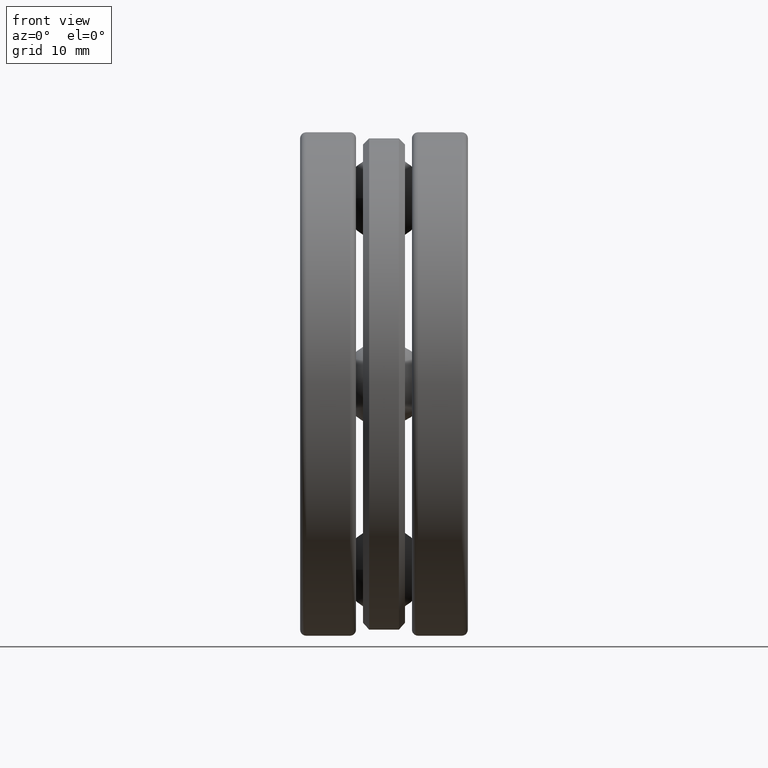
[diagram: clean part render]
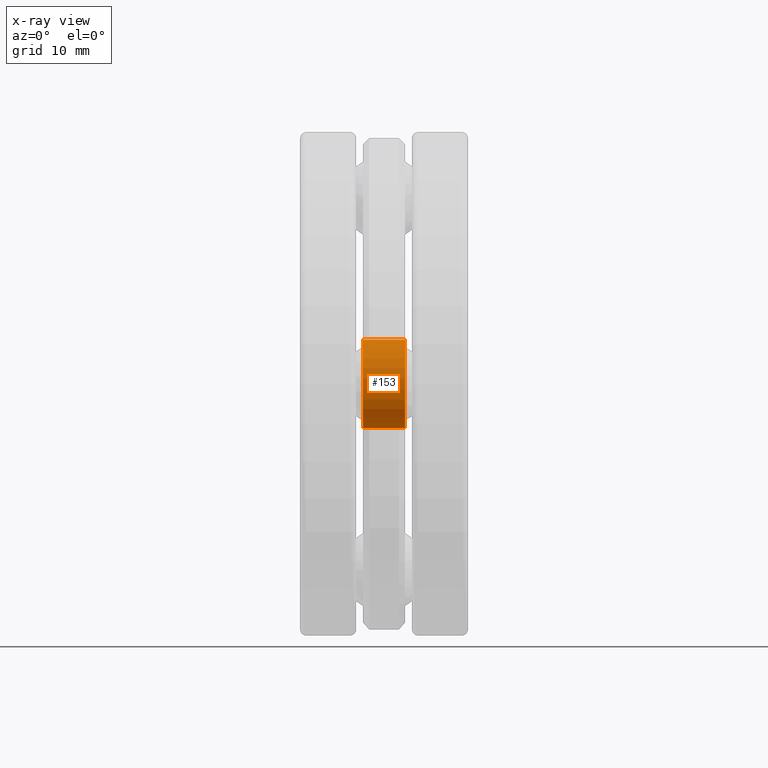
[diagram: x-ray — body ghosted, one internal face saturated and labeled with its STEP entity id]
A machine part, front view, then the same camera in x-ray: the body is ghosted and one INTERNAL B-rep face — a face not visible from any outside direction — is saturated and labeled: STEP entity #153.
In plain terms, the highlighted cylindrical surface (bore or boss wall) has radius 3.6957 mm, axis along (1, 0, 0).
Its self-contained STEP definition (entity closure, byte-faithful):
#62 = FACE_OUTER_BOUND ( 'NONE', #436, .T. ) ;
#69 = CYLINDRICAL_SURFACE ( 'NONE', #503, 0.1455000000000000500 ) ;
#70 = AXIS2_PLACEMENT_3D ( 'NONE', #284, #532, #727 ) ;
#105 = FACE_OUTER_BOUND ( 'NONE', #634, .T. ) ;
#120 = CARTESIAN_POINT ( 'NONE',  ( -0.2755393700787402400, -0.6102499999999999600, 0.0000000000000000000 ) ) ;
#153 = ADVANCED_FACE ( 'NONE', ( #62, #105 ), #69, .F. ) ;
#158 = EDGE_CURVE ( 'NONE', #671, #671, #752, .T. ) ;
#186 = CARTESIAN_POINT ( 'NONE',  ( 0.06887500000000003300, -0.6102499999999999600, 0.1455000000000000500 ) ) ;
#213 = CARTESIAN_POINT ( 'NONE',  ( -0.06887499999999996400, -0.6102499999999999600, 0.1455000000000000500 ) ) ;
#284 = CARTESIAN_POINT ( 'NONE',  ( 0.06887500000000003300, -0.6102499999999999600, 0.0000000000000000000 ) ) ;
#309 = DIRECTION ( 'NONE',  ( 0.0000000000000000000, 0.0000000000000000000, 1.000000000000000000 ) ) ;
#328 = VERTEX_POINT ( 'NONE', #213 ) ;
#367 = DIRECTION ( 'NONE',  ( -1.000000000000000000, -0.0000000000000000000, -0.0000000000000000000 ) ) ;
#371 = CARTESIAN_POINT ( 'NONE',  ( -0.06887499999999996400, -0.6102499999999999600, 0.0000000000000000000 ) ) ;
#407 = AXIS2_PLACEMENT_3D ( 'NONE', #371, #367, #309 ) ;
#436 = EDGE_LOOP ( 'NONE', ( #775 ) ) ;
#503 = AXIS2_PLACEMENT_3D ( 'NONE', #120, #763, #626 ) ;
#532 = DIRECTION ( 'NONE',  ( 1.000000000000000000, 0.0000000000000000000, 0.0000000000000000000 ) ) ;
#577 = EDGE_CURVE ( 'NONE', #328, #328, #660, .T. ) ;
#582 = ORIENTED_EDGE ( 'NONE', *, *, #577, .T. ) ;
#626 = DIRECTION ( 'NONE',  ( 0.0000000000000000000, 0.0000000000000000000, 1.000000000000000000 ) ) ;
#634 = EDGE_LOOP ( 'NONE', ( #582 ) ) ;
#660 = CIRCLE ( 'NONE', #407, 0.1455000000000000500 ) ;
#671 = VERTEX_POINT ( 'NONE', #186 ) ;
#727 = DIRECTION ( 'NONE',  ( 0.0000000000000000000, 0.0000000000000000000, 1.000000000000000000 ) ) ;
#752 = CIRCLE ( 'NONE', #70, 0.1455000000000000500 ) ;
#763 = DIRECTION ( 'NONE',  ( 1.000000000000000000, 0.0000000000000000000, 0.0000000000000000000 ) ) ;
#775 = ORIENTED_EDGE ( 'NONE', *, *, #158, .T. ) ;